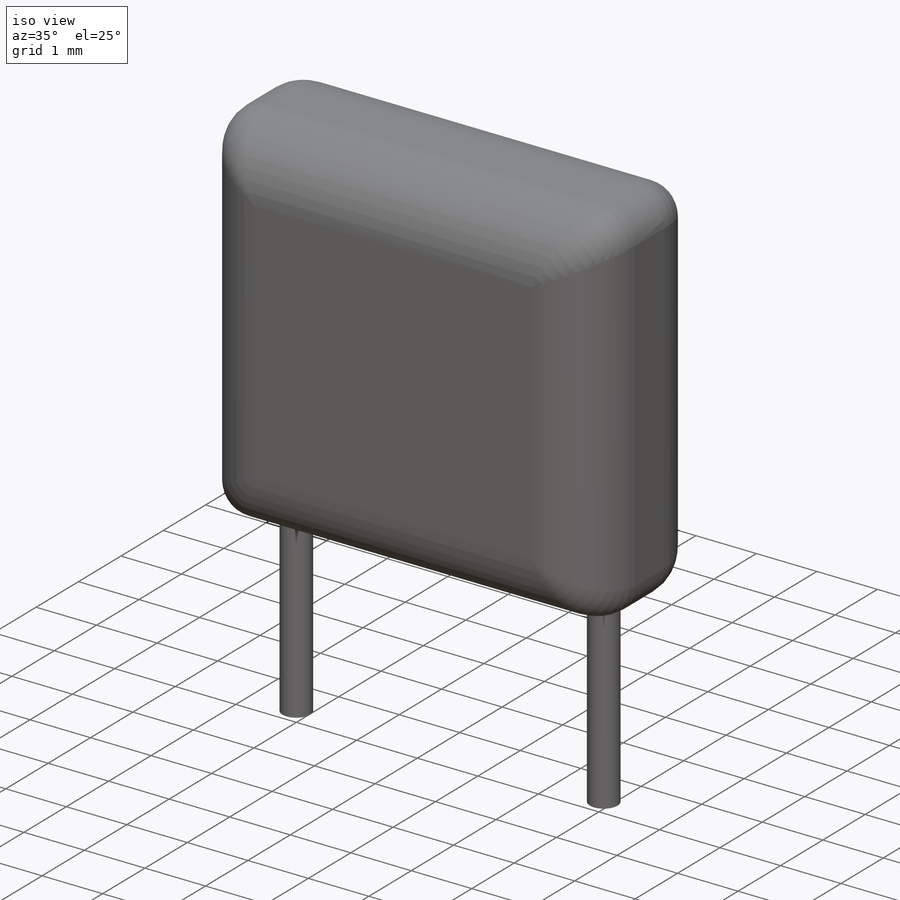
[diagram: iso view]
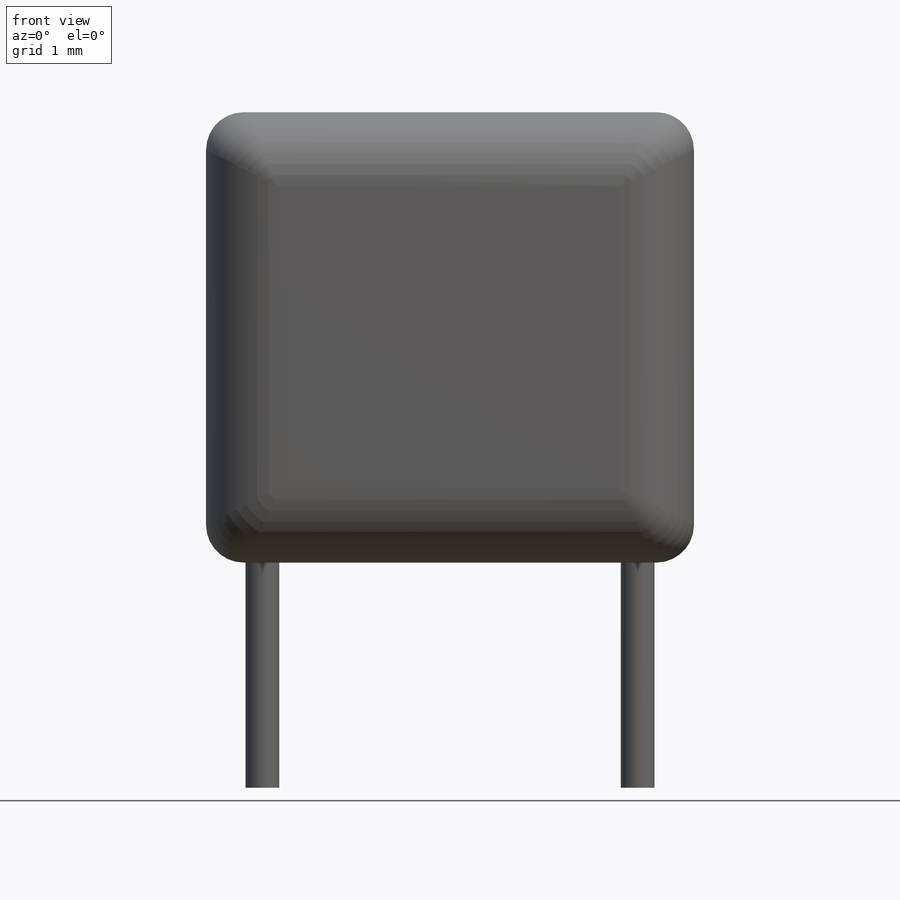
[diagram: front view]
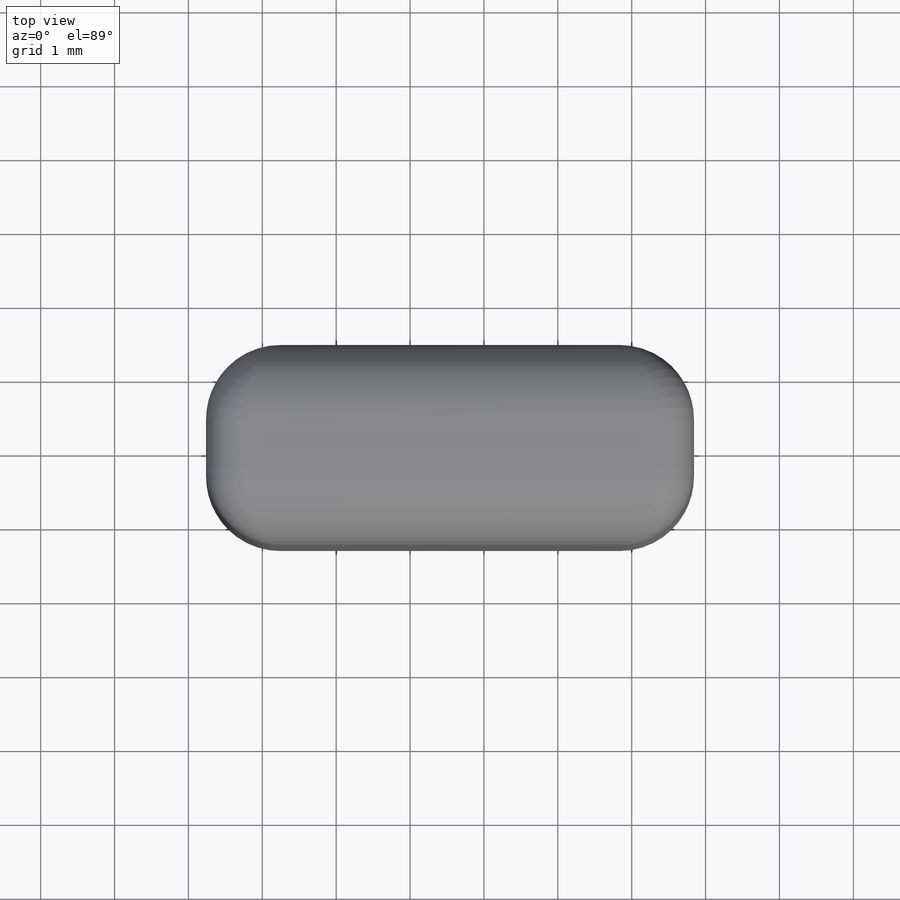
[diagram: top view]
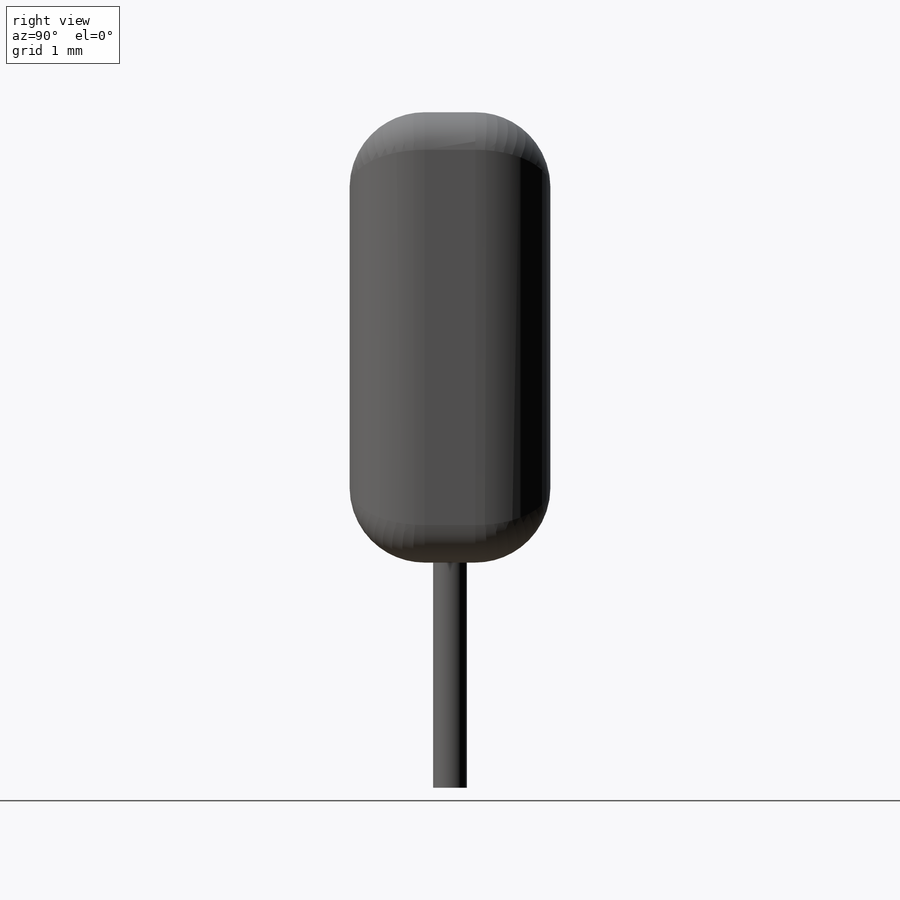
[diagram: right view]
SOLIDWORKS PART (.sldprt)
format: sldprt  version: not decoded by parser v0  size: 236,032 bytes
history: native  units: mm
features: sketch x4, plane x2, material x1, sweep x1, extrude x1, fillet x1, mirror x1 (+12 scaffold rows collapsed)
feature tree (23):
  scaffold x12  (default folders/planes/origin — collapsed)
  material  "Material <not specified>"
  plane  "Plane4"  Offset=2.54mm
  sketch  "Sketch1"  dims[D1=0.4572mm]
  sketch  "Sketch3"  dims[D1=3.048mm]
  sweep  "Base-Sweep"
  plane  "Centreline"  Offset=2.54mm
  sketch  "Sketch4"  dims[D2=0.508mm D1=6.096mm D3=3.302mm]
  extrude  "Boss-Extrude1"  Depth=2.7178mm
  fillet  "Fillet1"  Radius=1.016mm
  mirror  "Mirror7"
  sketch  "Component_Outline"
decode coverage: 5 of 8 modeling features carry decoded parameters
note: suppression state not decoded; provenance and decode notes live in map.json
